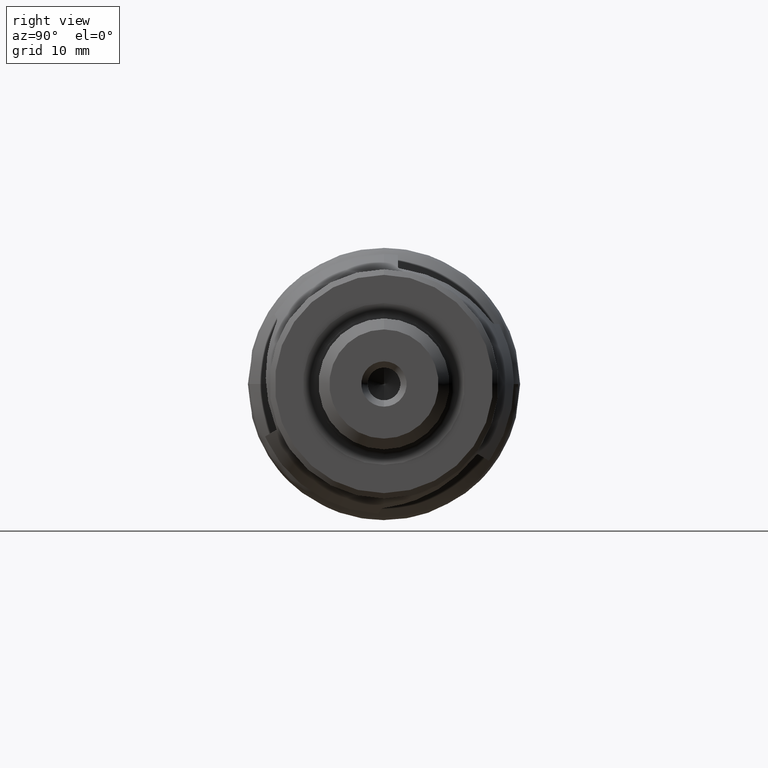
[diagram: clean part render]
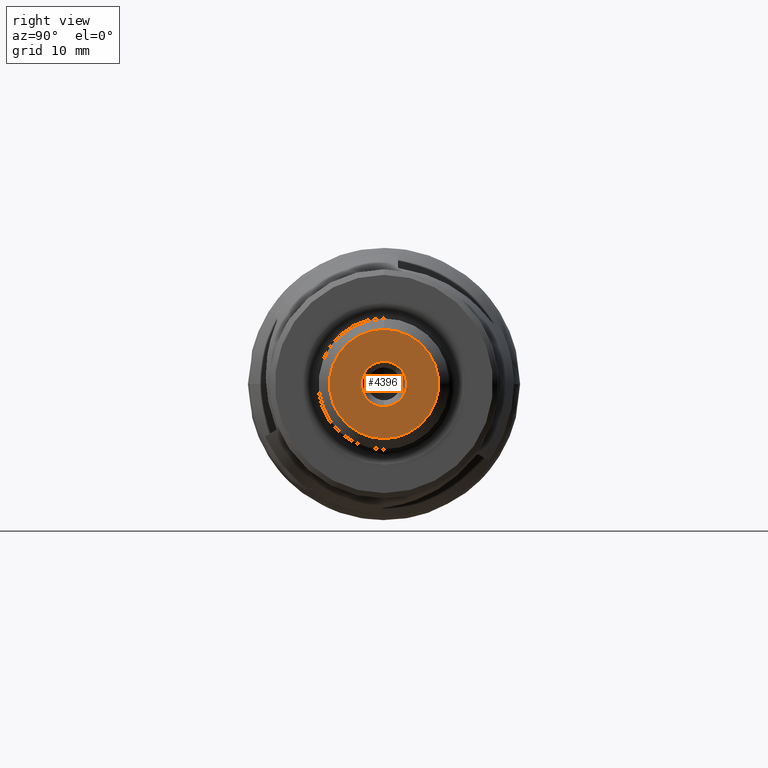
[diagram: same view with one face highlighted and labeled with its STEP entity id]
A machine part, right view. The second image highlights one B-rep face of the part: STEP entity #4396.
In plain terms, the highlighted planar face has unit normal (-1, 0, -0).
Its self-contained STEP definition (entity closure, byte-faithful):
#5 = DIRECTION ( 'NONE',  ( 0.0000000000000000000, 0.0000000000000000000, 1.000000000000000000 ) ) ;
#215 = DIRECTION ( 'NONE',  ( 0.0000000000000000000, 0.0000000000000000000, 1.000000000000000000 ) ) ;
#287 = EDGE_CURVE ( 'NONE', #4797, #5451, #1833, .T. ) ;
#314 = DIRECTION ( 'NONE',  ( -0.0000000000000000000, 0.0000000000000000000, 1.000000000000000000 ) ) ;
#912 = CARTESIAN_POINT ( 'NONE',  ( 56.29999999999999700, 0.0000000000000000000, 0.0000000000000000000 ) ) ;
#963 = DIRECTION ( 'NONE',  ( -1.000000000000000000, -0.0000000000000000000, -0.0000000000000000000 ) ) ;
#967 = DIRECTION ( 'NONE',  ( -1.000000000000000000, -0.0000000000000000000, -0.0000000000000000000 ) ) ;
#1264 = CARTESIAN_POINT ( 'NONE',  ( 56.29999999999999700, 0.0000000000000000000, -2.077350269189628400 ) ) ;
#1271 = EDGE_CURVE ( 'NONE', #2292, #2988, #3188, .T. ) ;
#1332 = AXIS2_PLACEMENT_3D ( 'NONE', #5594, #2956, #314 ) ;
#1633 = ORIENTED_EDGE ( 'NONE', *, *, #2369, .T. ) ;
#1833 = CIRCLE ( 'NONE', #5256, 2.077350269189628400 ) ;
#1841 = ORIENTED_EDGE ( 'NONE', *, *, #1271, .F. ) ;
#1845 = DIRECTION ( 'NONE',  ( 0.0000000000000000000, 0.0000000000000000000, 1.000000000000000000 ) ) ;
#1991 = EDGE_LOOP ( 'NONE', ( #4004, #1633 ) ) ;
#2205 = AXIS2_PLACEMENT_3D ( 'NONE', #2251, #963, #4042 ) ;
#2251 = CARTESIAN_POINT ( 'NONE',  ( 56.29999999999999700, 0.0000000000000000000, 0.0000000000000000000 ) ) ;
#2292 = VERTEX_POINT ( 'NONE', #5433 ) ;
#2369 = EDGE_CURVE ( 'NONE', #5451, #4797, #3797, .T. ) ;
#2683 = AXIS2_PLACEMENT_3D ( 'NONE', #4530, #967, #1845 ) ;
#2819 = CARTESIAN_POINT ( 'NONE',  ( 56.29999999999999700, 0.0000000000000000000, 0.0000000000000000000 ) ) ;
#2858 = DIRECTION ( 'NONE',  ( -1.000000000000000000, -0.0000000000000000000, -0.0000000000000000000 ) ) ;
#2875 = FACE_BOUND ( 'NONE', #1991, .T. ) ;
#2956 = DIRECTION ( 'NONE',  ( -1.000000000000000000, 0.0000000000000000000, -0.0000000000000000000 ) ) ;
#2988 = VERTEX_POINT ( 'NONE', #5689 ) ;
#3001 = ORIENTED_EDGE ( 'NONE', *, *, #3157, .F. ) ;
#3157 = EDGE_CURVE ( 'NONE', #2988, #2292, #3710, .T. ) ;
#3188 = CIRCLE ( 'NONE', #2683, 4.999999999999984000 ) ;
#3547 = CARTESIAN_POINT ( 'NONE',  ( 56.29999999999999700, 2.544020357870970900E-016, 2.077350269189628400 ) ) ;
#3710 = CIRCLE ( 'NONE', #2205, 4.999999999999984000 ) ;
#3797 = CIRCLE ( 'NONE', #4023, 2.077350269189628400 ) ;
#3984 = FACE_OUTER_BOUND ( 'NONE', #5462, .T. ) ;
#4004 = ORIENTED_EDGE ( 'NONE', *, *, #287, .T. ) ;
#4023 = AXIS2_PLACEMENT_3D ( 'NONE', #2819, #2858, #215 ) ;
#4042 = DIRECTION ( 'NONE',  ( 0.0000000000000000000, 0.0000000000000000000, 1.000000000000000000 ) ) ;
#4396 = ADVANCED_FACE ( 'NONE', ( #3984, #2875 ), #5148, .F. ) ;
#4530 = CARTESIAN_POINT ( 'NONE',  ( 56.29999999999999700, 0.0000000000000000000, 0.0000000000000000000 ) ) ;
#4797 = VERTEX_POINT ( 'NONE', #1264 ) ;
#4879 = DIRECTION ( 'NONE',  ( -1.000000000000000000, -0.0000000000000000000, -0.0000000000000000000 ) ) ;
#5148 = PLANE ( 'NONE',  #1332 ) ;
#5256 = AXIS2_PLACEMENT_3D ( 'NONE', #912, #4879, #5 ) ;
#5433 = CARTESIAN_POINT ( 'NONE',  ( 56.29999999999999700, 6.735557395310456800E-016, -4.999999999999984000 ) ) ;
#5451 = VERTEX_POINT ( 'NONE', #3547 ) ;
#5462 = EDGE_LOOP ( 'NONE', ( #3001, #1841 ) ) ;
#5594 = CARTESIAN_POINT ( 'NONE',  ( 56.29999999999999700, 0.0000000000000000000, 0.0000000000000000000 ) ) ;
#5689 = CARTESIAN_POINT ( 'NONE',  ( 56.29999999999999700, 0.0000000000000000000, 4.999999999999984000 ) ) ;